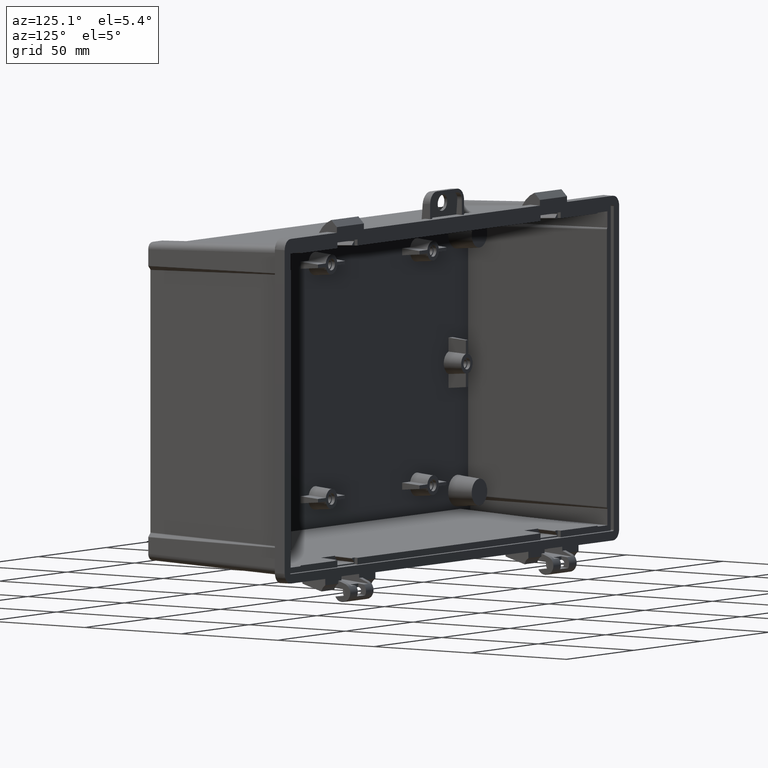
[diagram: clean part render]
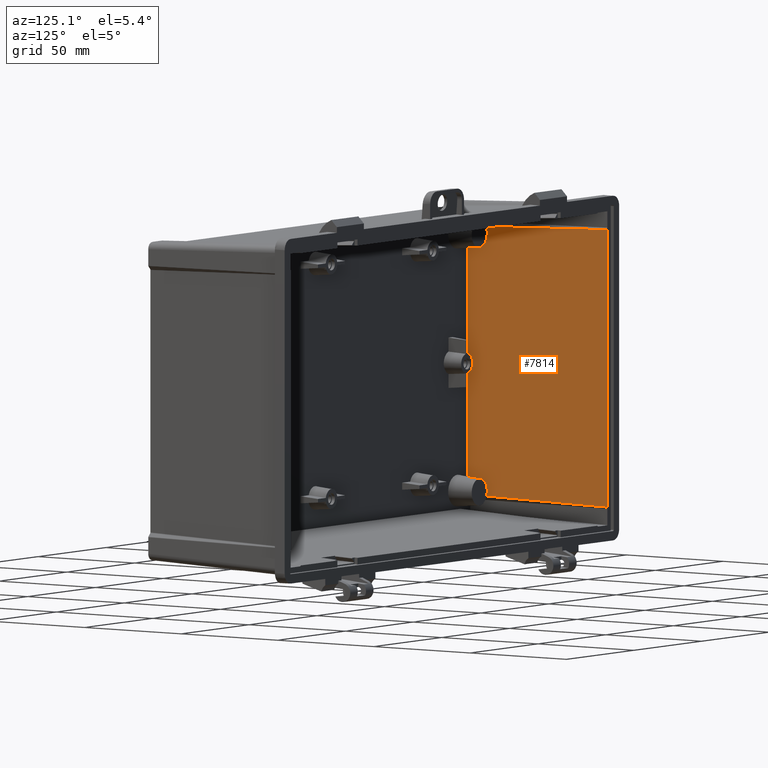
[diagram: same view with one face highlighted and labeled with its STEP entity id]
A machine part, auxiliary view. The second image highlights one B-rep face of the part: STEP entity #7814.
In plain terms, the highlighted planar face has unit normal (-0.9986, -0.0523, 0).
Its self-contained STEP definition (entity closure, byte-faithful):
#882 = VERTEX_POINT ( 'NONE', #47731 ) ;
#884 = VERTEX_POINT ( 'NONE', #47732 ) ;
#1689 = VERTEX_POINT ( 'NONE', #48244 ) ;
#1692 = VERTEX_POINT ( 'NONE', #48245 ) ;
#4966 = EDGE_CURVE ( 'NONE', #882, #884, #22676, .T. ) ;
#5557 = EDGE_CURVE ( 'NONE', #1689, #1692, #23165, .T. ) ;
#6778 = ORIENTED_EDGE ( 'NONE', *, *, #7952, .T. ) ;
#6779 = ORIENTED_EDGE ( 'NONE', *, *, #7950, .T. ) ;
#6780 = ORIENTED_EDGE ( 'NONE', *, *, #4966, .F. ) ;
#6782 = ORIENTED_EDGE ( 'NONE', *, *, #5557, .F. ) ;
#7814 = ADVANCED_FACE ( 'NONE', ( #33597 ), #37101, .F. ) ;
#7950 = EDGE_CURVE ( 'NONE', #1689, #884, #33648, .T. ) ;
#7952 = EDGE_CURVE ( 'NONE', #882, #1692, #33649, .T. ) ;
#19491 = CARTESIAN_POINT ( 'NONE',  ( -116.5913486918568500, -1.500000000000000000, -68.99999999999998600 ) ) ;
#19492 = DIRECTION ( 'NONE',  ( -0.0000000000000000000, -0.0000000000000000000, -1.000000000000000000 ) ) ;
#22676 = LINE ( 'NONE', #19491, #46324 ) ;
#23165 = LINE ( 'NONE', #29509, #48301 ) ;
#29509 = CARTESIAN_POINT ( 'NONE',  ( -112.9490080316854800, -71.00000000000000000, 68.99999999999998600 ) ) ;
#29511 = DIRECTION ( 'NONE',  ( -0.0000000000000000000, -0.0000000000000000000, 1.000000000000000000 ) ) ;
#33597 = FACE_OUTER_BOUND ( 'NONE', #47052, .T. ) ;
#33648 = LINE ( 'NONE', #37273, #36148 ) ;
#33649 = LINE ( 'NONE', #37275, #36149 ) ;
#36084 = AXIS2_PLACEMENT_3D ( 'NONE', #37102, #37103, #37104 ) ;
#36148 = VECTOR ( 'NONE', #37274, 1000.000000000000000 ) ;
#36149 = VECTOR ( 'NONE', #37276, 1000.000000000000000 ) ;
#37101 = PLANE ( 'NONE',  #36084 ) ;
#37102 = CARTESIAN_POINT ( 'NONE',  ( -116.4175213037179200, -4.816824153149696000, 68.99999999999998600 ) ) ;
#37103 = DIRECTION ( 'NONE',  ( -0.9986295347545739400, -0.05233595624294395300, 0.0000000000000000000 ) ) ;
#37104 = DIRECTION ( 'NONE',  ( 0.05233595624294395300, -0.9986295347545739400, 0.0000000000000000000 ) ) ;
#37273 = CARTESIAN_POINT ( 'NONE',  ( -116.2320993085119300, -8.354886588586403200, -58.97433519230159500 ) ) ;
#37274 = DIRECTION ( 'NONE',  ( -0.05231591166023782900, 0.9982470613321099400, -0.02767399372994225300 ) ) ;
#37275 = CARTESIAN_POINT ( 'NONE',  ( -112.9496081516284700, -70.98854902933885600, 57.23796786520356500 ) ) ;
#37276 = DIRECTION ( 'NONE',  ( 0.05231591166023782900, -0.9982470613321099400, -0.02767399372994226000 ) ) ;
#46324 = VECTOR ( 'NONE', #19492, 1000.000000000000000 ) ;
#47052 = EDGE_LOOP ( 'NONE', ( #6779, #6780, #6778, #6782 ) ) ;
#47731 = CARTESIAN_POINT ( 'NONE',  ( -116.5913486918568500, -1.500000000000000000, 59.16437040083884100 ) ) ;
#47732 = CARTESIAN_POINT ( 'NONE',  ( -116.5913486918568500, -1.500000000000000000, -59.16437040083891200 ) ) ;
#48244 = CARTESIAN_POINT ( 'NONE',  ( -112.9490080316854800, -71.00000000000000000, -57.23765041464186300 ) ) ;
#48245 = CARTESIAN_POINT ( 'NONE',  ( -112.9490080316854800, -71.00000000000000000, 57.23765041464191900 ) ) ;
#48301 = VECTOR ( 'NONE', #29511, 1000.000000000000000 ) ;